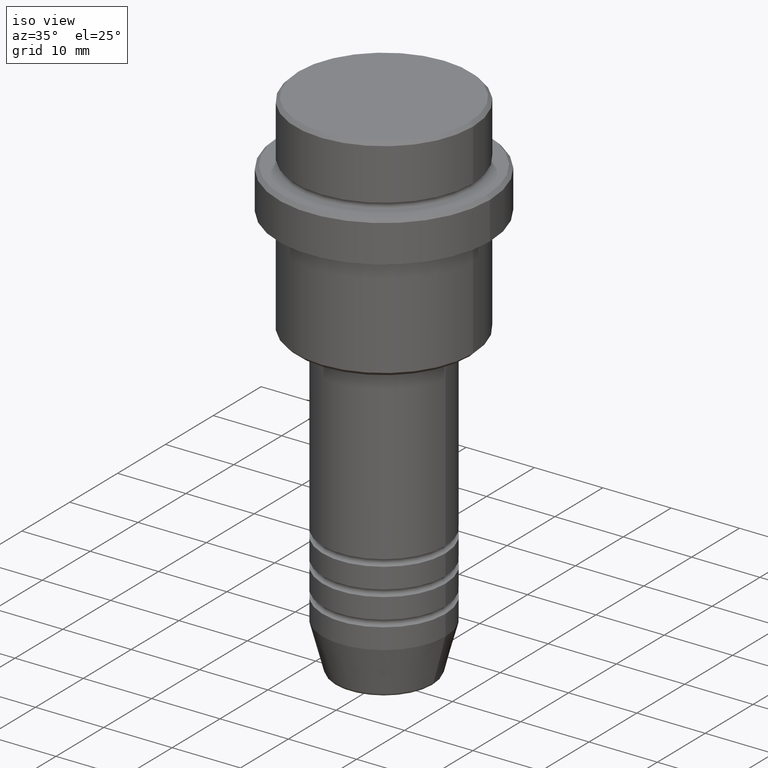
[diagram: clean part render]
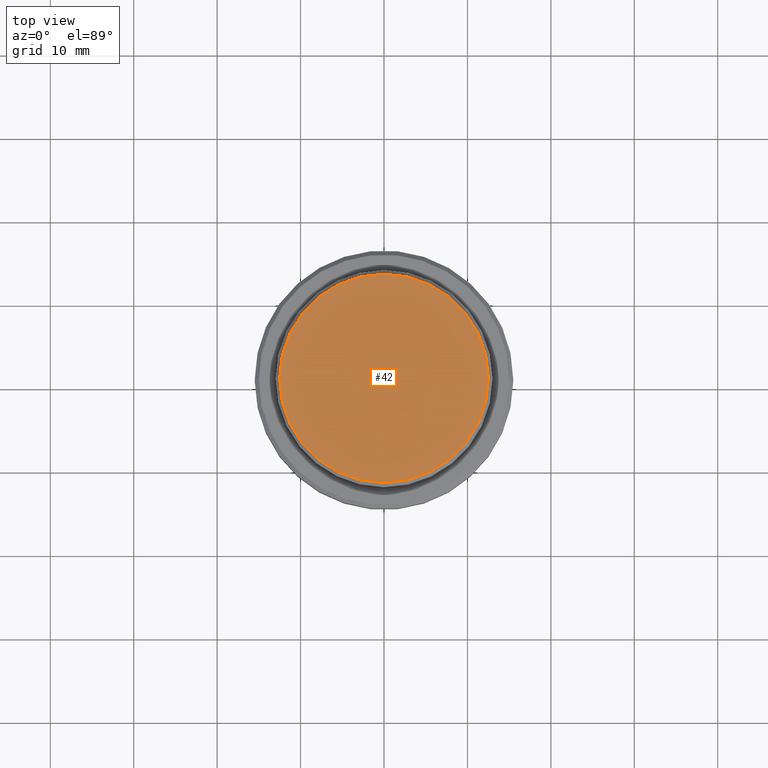
[diagram: tour spotlight — one face highlighted and labeled with its STEP entity id]
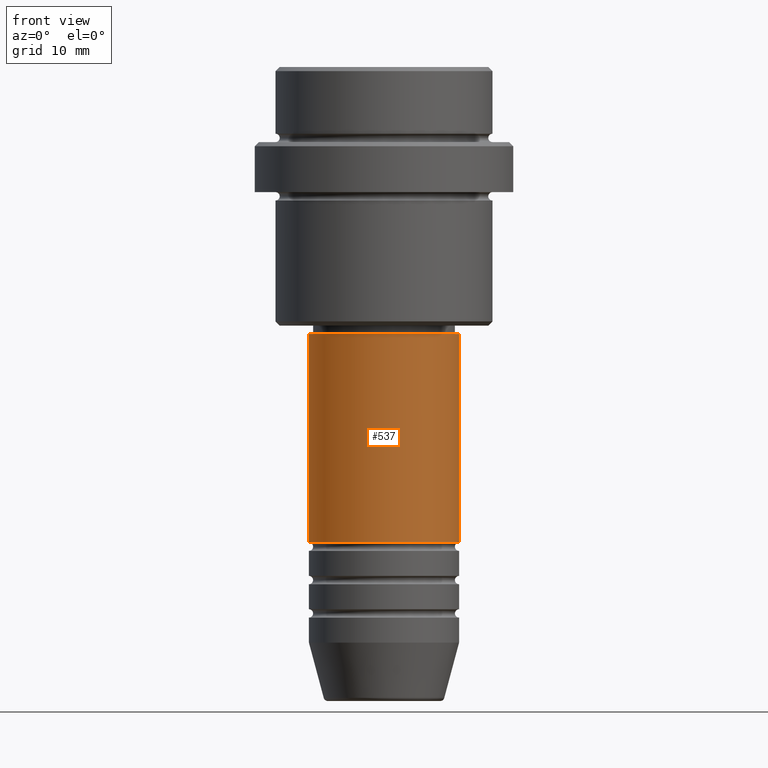
[diagram: tour spotlight — one face highlighted and labeled with its STEP entity id]
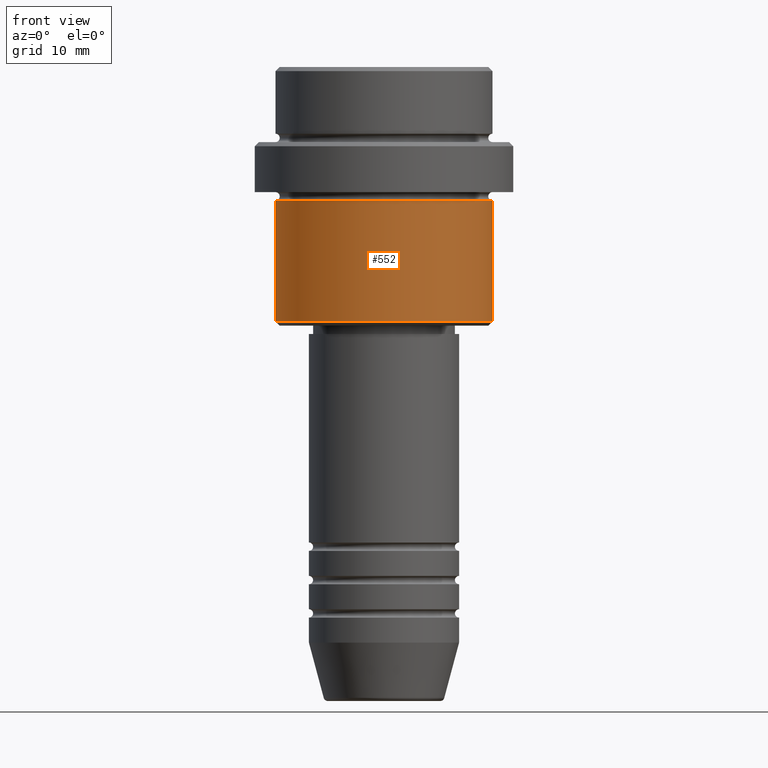
[diagram: tour spotlight — one face highlighted and labeled with its STEP entity id]
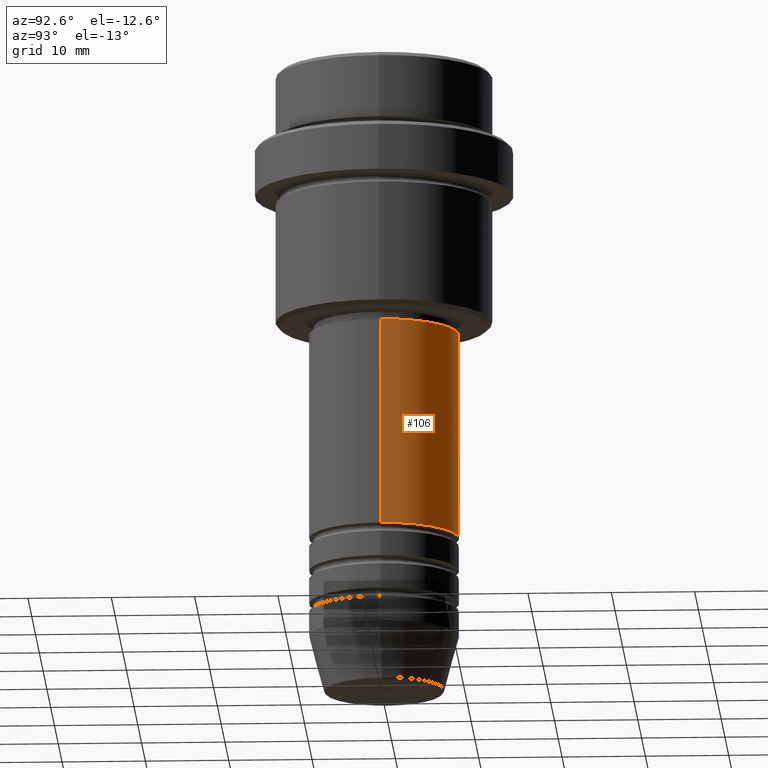
[diagram: tour spotlight — one face highlighted and labeled with its STEP entity id]
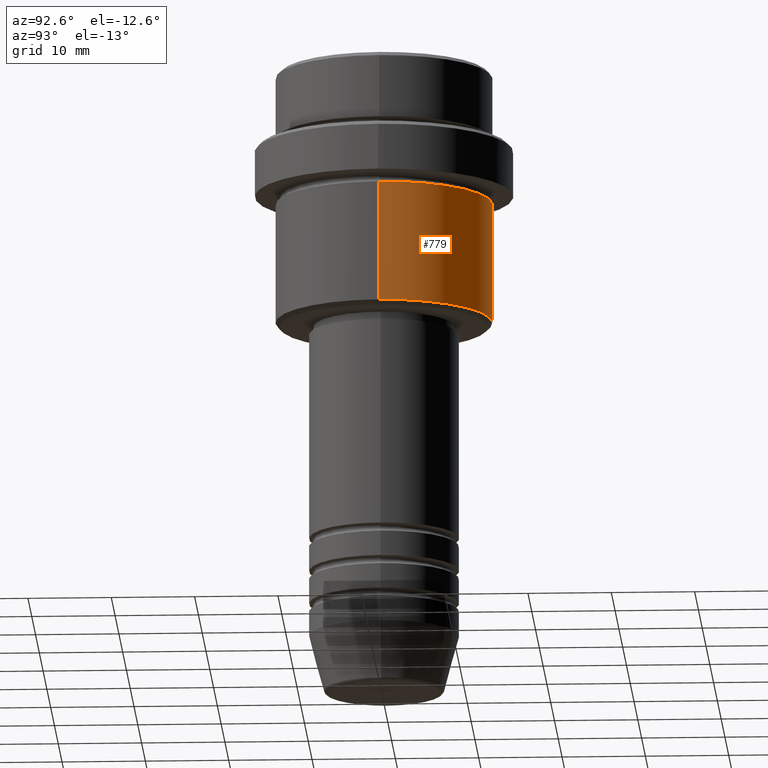
[diagram: tour spotlight — one face highlighted and labeled with its STEP entity id]
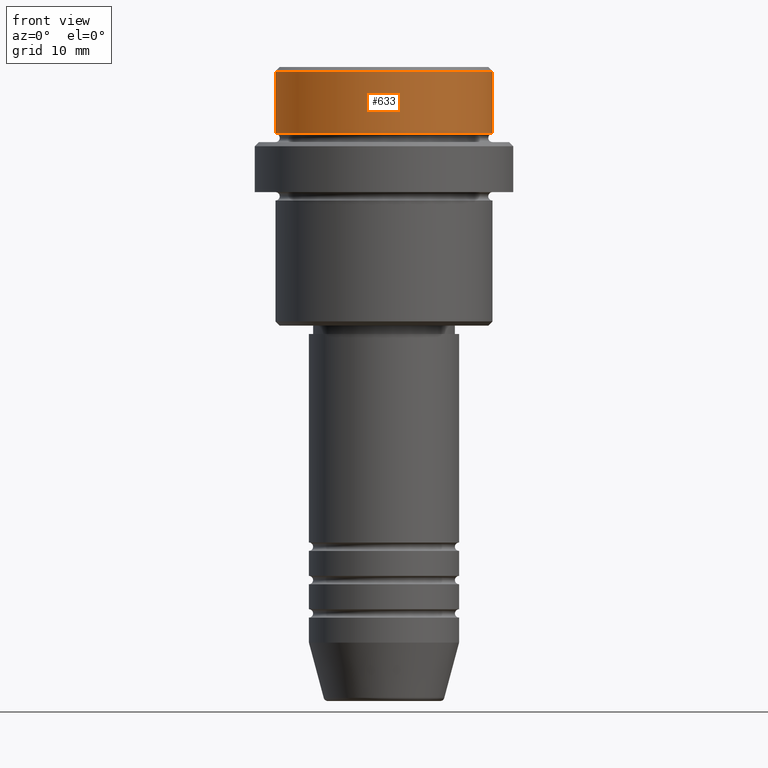
[diagram: tour spotlight — one face highlighted and labeled with its STEP entity id]
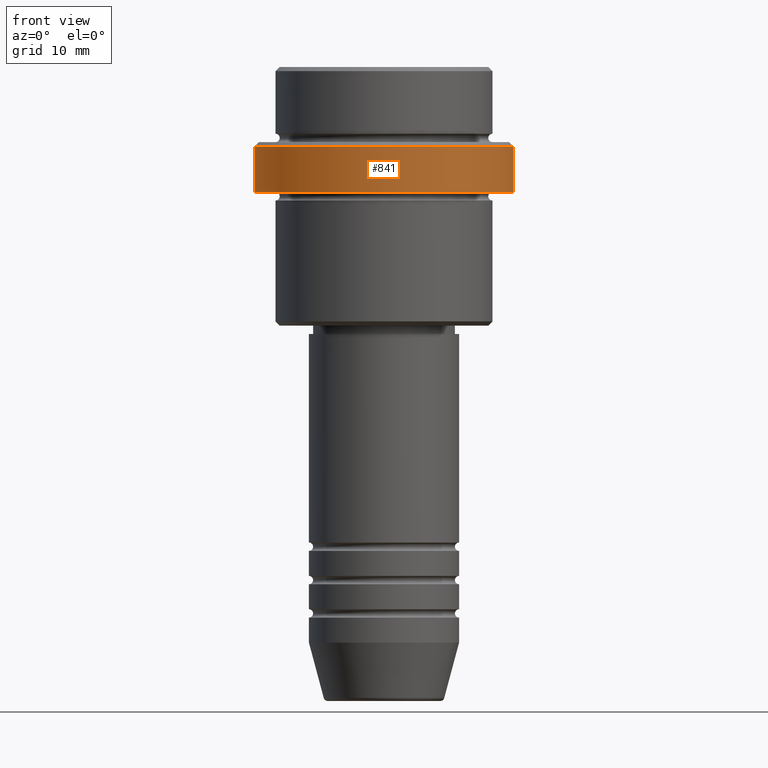
[diagram: tour spotlight — one face highlighted and labeled with its STEP entity id]
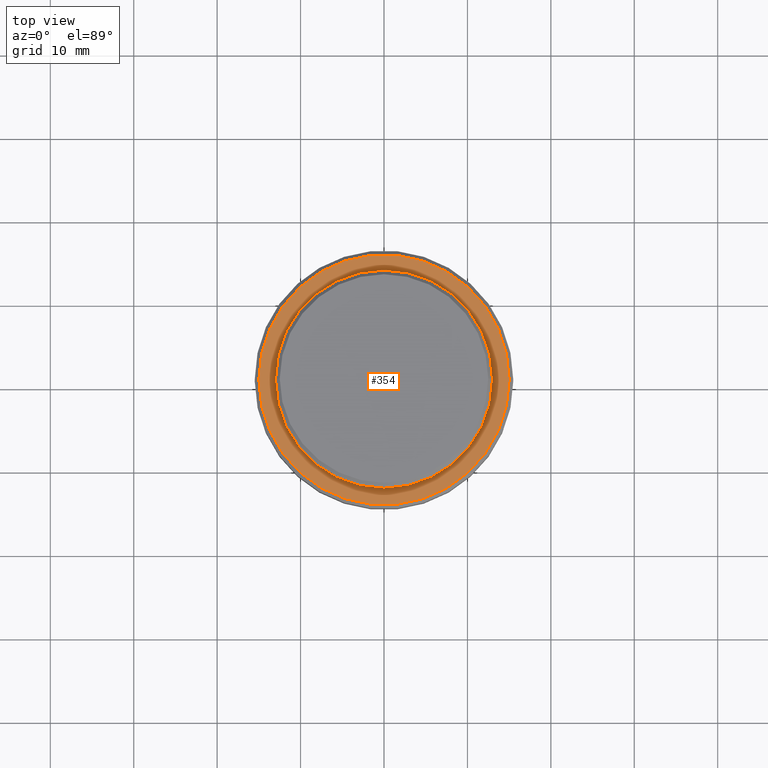
[diagram: tour spotlight — one face highlighted and labeled with its STEP entity id]
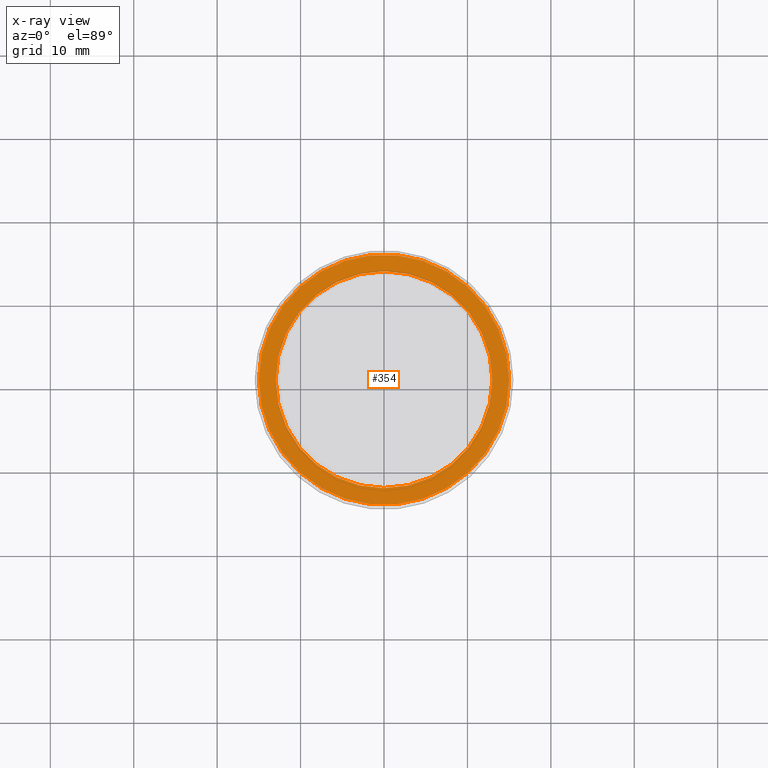
[diagram: x-ray of the same camera — body ghosted, this tour face saturated]
A machine part: a face-by-face anatomy tour. The part has 52 B-rep faces; the first image is the clean iso view, then the 8 largest visible faces are spotlighted one at a time (largest first), each with its STEP entity span.

Face 1 — top view, entity #42. In plain terms, the highlighted planar face has unit normal (0, -0, 1).
Definition (entity closure, byte-faithful):
#42 = ADVANCED_FACE ( 'NONE', ( #632 ), #1303, .T. ) ;
#82 = CARTESIAN_POINT ( 'NONE',  ( -12.50000000000001243, 0.000000000000000000, 0.000000000000000000 ) ) ;
#84 = AXIS2_PLACEMENT_3D ( 'NONE', #495, #269, #937 ) ;
#147 = CIRCLE ( 'NONE', #712, 12.50000000000001243 ) ;
#162 = DIRECTION ( 'NONE',  ( 1.000000000000000000, 0.000000000000000000, 0.000000000000000000 ) ) ;
#189 = AXIS2_PLACEMENT_3D ( 'NONE', #964, #1088, #162 ) ;
#269 = DIRECTION ( 'NONE',  ( -0.000000000000000000, -0.000000000000000000, 1.000000000000000000 ) ) ;
#287 = CARTESIAN_POINT ( 'NONE',  ( 0.000000000000000000, 0.000000000000000000, 0.000000000000000000 ) ) ;
#425 = VERTEX_POINT ( 'NONE', #940 ) ;
#448 = ORIENTED_EDGE ( 'NONE', *, *, #913, .T. ) ;
#495 = CARTESIAN_POINT ( 'NONE',  ( 0.000000000000000000, 0.000000000000000000, 0.000000000000000000 ) ) ;
#514 = ORIENTED_EDGE ( 'NONE', *, *, #1376, .T. ) ;
#632 = FACE_OUTER_BOUND ( 'NONE', #1201, .T. ) ;
#695 = CIRCLE ( 'NONE', #84, 12.50000000000001243 ) ;
#712 = AXIS2_PLACEMENT_3D ( 'NONE', #287, #946, #1174 ) ;
#913 = EDGE_CURVE ( 'NONE', #425, #1382, #147, .T. ) ;
#937 = DIRECTION ( 'NONE',  ( 1.000000000000000000, 0.000000000000000000, 0.000000000000000000 ) ) ;
#940 = CARTESIAN_POINT ( 'NONE',  ( 12.50000000000001243, 1.561424668912876097E-15, 0.000000000000000000 ) ) ;
#946 = DIRECTION ( 'NONE',  ( -0.000000000000000000, -0.000000000000000000, 1.000000000000000000 ) ) ;
#964 = CARTESIAN_POINT ( 'NONE',  ( 0.000000000000000000, 0.000000000000000000, 0.000000000000000000 ) ) ;
#1088 = DIRECTION ( 'NONE',  ( 0.000000000000000000, -0.000000000000000000, 1.000000000000000000 ) ) ;
#1174 = DIRECTION ( 'NONE',  ( 1.000000000000000000, 0.000000000000000000, 0.000000000000000000 ) ) ;
#1201 = EDGE_LOOP ( 'NONE', ( #514, #448 ) ) ;
#1303 = PLANE ( 'NONE',  #189 ) ;
#1376 = EDGE_CURVE ( 'NONE', #1382, #425, #695, .T. ) ;
#1382 = VERTEX_POINT ( 'NONE', #82 ) ;

Face 2 — front view, entity #537. In plain terms, the highlighted cylindrical surface (partial cylindrical patch) has radius 9 mm, axis along (-0, -0, 1).
Definition (entity closure, byte-faithful):
#66 = VERTEX_POINT ( 'NONE', #748 ) ;
#93 = ORIENTED_EDGE ( 'NONE', *, *, #1107, .F. ) ;
#102 = DIRECTION ( 'NONE',  ( -0.000000000000000000, -0.000000000000000000, 1.000000000000000000 ) ) ;
#142 = CARTESIAN_POINT ( 'NONE',  ( 0.000000000000000000, 0.000000000000000000, 0.000000000000000000 ) ) ;
#235 = AXIS2_PLACEMENT_3D ( 'NONE', #490, #539, #1206 ) ;
#241 = AXIS2_PLACEMENT_3D ( 'NONE', #142, #337, #1221 ) ;
#325 = CARTESIAN_POINT ( 'NONE',  ( 0.000000000000000000, 0.000000000000000000, -56.99999999999987921 ) ) ;
#333 = VERTEX_POINT ( 'NONE', #1381 ) ;
#337 = DIRECTION ( 'NONE',  ( -0.000000000000000000, -0.000000000000000000, 1.000000000000000000 ) ) ;
#344 = VERTEX_POINT ( 'NONE', #524 ) ;
#363 = DIRECTION ( 'NONE',  ( -0.000000000000000000, -0.000000000000000000, 1.000000000000000000 ) ) ;
#432 = ORIENTED_EDGE ( 'NONE', *, *, #1024, .F. ) ;
#490 = CARTESIAN_POINT ( 'NONE',  ( 0.000000000000000000, 0.000000000000000000, -32.00000000000000000 ) ) ;
#524 = CARTESIAN_POINT ( 'NONE',  ( -9.000000000000000000, 1.102182119232617714E-15, -56.99999999999987921 ) ) ;
#537 = ADVANCED_FACE ( 'NONE', ( #888 ), #1333, .T. ) ;
#539 = DIRECTION ( 'NONE',  ( -0.000000000000000000, -0.000000000000000000, 1.000000000000000000 ) ) ;
#583 = CIRCLE ( 'NONE', #1204, 9.000000000000000000 ) ;
#607 = EDGE_CURVE ( 'NONE', #344, #1370, #583, .T. ) ;
#666 = DIRECTION ( 'NONE',  ( 1.000000000000000000, 0.000000000000000000, 0.000000000000000000 ) ) ;
#741 = EDGE_CURVE ( 'NONE', #1370, #66, #997, .T. ) ;
#745 = LINE ( 'NONE', #1187, #1055 ) ;
#748 = CARTESIAN_POINT ( 'NONE',  ( 9.000000000000001776, 0.000000000000000000, -32.00000000000000000 ) ) ;
#888 = FACE_OUTER_BOUND ( 'NONE', #1396, .T. ) ;
#997 = LINE ( 'NONE', #1261, #1229 ) ;
#1018 = ORIENTED_EDGE ( 'NONE', *, *, #607, .T. ) ;
#1024 = EDGE_CURVE ( 'NONE', #333, #66, #1076, .T. ) ;
#1055 = VECTOR ( 'NONE', #102, 1000.000000000000000 ) ;
#1076 = CIRCLE ( 'NONE', #235, 9.000000000000001776 ) ;
#1107 = EDGE_CURVE ( 'NONE', #344, #333, #745, .T. ) ;
#1187 = CARTESIAN_POINT ( 'NONE',  ( -9.000000000000001776, 1.102182119232617911E-15, 0.000000000000000000 ) ) ;
#1193 = DIRECTION ( 'NONE',  ( -0.000000000000000000, -0.000000000000000000, 1.000000000000000000 ) ) ;
#1204 = AXIS2_PLACEMENT_3D ( 'NONE', #325, #1193, #666 ) ;
#1206 = DIRECTION ( 'NONE',  ( 1.000000000000000000, 0.000000000000000000, 0.000000000000000000 ) ) ;
#1221 = DIRECTION ( 'NONE',  ( 1.000000000000000000, 0.000000000000000000, 0.000000000000000000 ) ) ;
#1229 = VECTOR ( 'NONE', #363, 1000.000000000000000 ) ;
#1233 = ORIENTED_EDGE ( 'NONE', *, *, #741, .T. ) ;
#1261 = CARTESIAN_POINT ( 'NONE',  ( 9.000000000000001776, 0.000000000000000000, 0.000000000000000000 ) ) ;
#1272 = CARTESIAN_POINT ( 'NONE',  ( 9.000000000000000000, 0.000000000000000000, -56.99999999999987921 ) ) ;
#1333 = CYLINDRICAL_SURFACE ( 'NONE', #241, 9.000000000000001776 ) ;
#1370 = VERTEX_POINT ( 'NONE', #1272 ) ;
#1381 = CARTESIAN_POINT ( 'NONE',  ( -9.000000000000001776, 1.102182119232617911E-15, -32.00000000000000000 ) ) ;
#1396 = EDGE_LOOP ( 'NONE', ( #93, #1018, #1233, #432 ) ) ;

Face 3 — front view, entity #552. In plain terms, the highlighted cylindrical surface (partial cylindrical patch) has radius 13 mm, axis along (-0, -0, 1).
Definition (entity closure, byte-faithful):
#29 = CYLINDRICAL_SURFACE ( 'NONE', #1102, 13.00000000000000000 ) ;
#122 = CARTESIAN_POINT ( 'NONE',  ( -13.00000000000000000, 1.592040838891559095E-15, 0.000000000000000000 ) ) ;
#131 = CARTESIAN_POINT ( 'NONE',  ( 0.000000000000000000, 0.000000000000000000, -16.00000000000000000 ) ) ;
#167 = ORIENTED_EDGE ( 'NONE', *, *, #653, .T. ) ;
#184 = CARTESIAN_POINT ( 'NONE',  ( -13.00000000000000000, 1.592040838891559095E-15, -30.50000000000001421 ) ) ;
#234 = DIRECTION ( 'NONE',  ( -1.000000000000000000, 0.000000000000000000, 0.000000000000000000 ) ) ;
#253 = CARTESIAN_POINT ( 'NONE',  ( 13.00000000000000000, 0.000000000000000000, -30.50000000000001421 ) ) ;
#256 = ORIENTED_EDGE ( 'NONE', *, *, #1137, .F. ) ;
#364 = VERTEX_POINT ( 'NONE', #621 ) ;
#482 = DIRECTION ( 'NONE',  ( 1.000000000000000000, 0.000000000000000000, 0.000000000000000000 ) ) ;
#492 = EDGE_CURVE ( 'NONE', #789, #1093, #938, .T. ) ;
#527 = CIRCLE ( 'NONE', #580, 13.00000000000000000 ) ;
#552 = ADVANCED_FACE ( 'NONE', ( #1125 ), #29, .T. ) ;
#553 = DIRECTION ( 'NONE',  ( -0.000000000000000000, -0.000000000000000000, 1.000000000000000000 ) ) ;
#554 = VECTOR ( 'NONE', #553, 1000.000000000000000 ) ;
#580 = AXIS2_PLACEMENT_3D ( 'NONE', #131, #701, #482 ) ;
#621 = CARTESIAN_POINT ( 'NONE',  ( -13.00000000000000000, 1.592040838891559095E-15, -16.00000000000000000 ) ) ;
#653 = EDGE_CURVE ( 'NONE', #950, #789, #861, .T. ) ;
#684 = CARTESIAN_POINT ( 'NONE',  ( 0.000000000000000000, 0.000000000000000000, 0.000000000000000000 ) ) ;
#701 = DIRECTION ( 'NONE',  ( -0.000000000000000000, -0.000000000000000000, 1.000000000000000000 ) ) ;
#756 = CARTESIAN_POINT ( 'NONE',  ( 0.000000000000000000, 0.000000000000000000, -30.50000000000001421 ) ) ;
#773 = EDGE_LOOP ( 'NONE', ( #256, #167, #1185, #794 ) ) ;
#789 = VERTEX_POINT ( 'NONE', #253 ) ;
#794 = ORIENTED_EDGE ( 'NONE', *, *, #851, .F. ) ;
#802 = DIRECTION ( 'NONE',  ( 1.000000000000000000, 0.000000000000000000, 0.000000000000000000 ) ) ;
#851 = EDGE_CURVE ( 'NONE', #364, #1093, #527, .T. ) ;
#861 = CIRCLE ( 'NONE', #1144, 13.00000000000000000 ) ;
#915 = DIRECTION ( 'NONE',  ( -0.000000000000000000, -0.000000000000000000, 1.000000000000000000 ) ) ;
#938 = LINE ( 'NONE', #1267, #1300 ) ;
#950 = VERTEX_POINT ( 'NONE', #184 ) ;
#1043 = DIRECTION ( 'NONE',  ( -0.000000000000000000, -0.000000000000000000, 1.000000000000000000 ) ) ;
#1093 = VERTEX_POINT ( 'NONE', #1322 ) ;
#1102 = AXIS2_PLACEMENT_3D ( 'NONE', #684, #915, #802 ) ;
#1125 = FACE_OUTER_BOUND ( 'NONE', #773, .T. ) ;
#1137 = EDGE_CURVE ( 'NONE', #950, #364, #1304, .T. ) ;
#1144 = AXIS2_PLACEMENT_3D ( 'NONE', #756, #1207, #234 ) ;
#1185 = ORIENTED_EDGE ( 'NONE', *, *, #492, .T. ) ;
#1207 = DIRECTION ( 'NONE',  ( -0.000000000000000000, -0.000000000000000000, 1.000000000000000000 ) ) ;
#1267 = CARTESIAN_POINT ( 'NONE',  ( 13.00000000000000000, 0.000000000000000000, 0.000000000000000000 ) ) ;
#1300 = VECTOR ( 'NONE', #1043, 1000.000000000000000 ) ;
#1304 = LINE ( 'NONE', #122, #554 ) ;
#1322 = CARTESIAN_POINT ( 'NONE',  ( 13.00000000000000000, 0.000000000000000000, -16.00000000000000000 ) ) ;

Face 4 — auxiliary view, entity #106. In plain terms, the highlighted cylindrical surface (partial cylindrical patch) has radius 9 mm, axis along (-0, -0, 1).
Definition (entity closure, byte-faithful):
#58 = CIRCLE ( 'NONE', #108, 9.000000000000000000 ) ;
#66 = VERTEX_POINT ( 'NONE', #748 ) ;
#68 = DIRECTION ( 'NONE',  ( -0.000000000000000000, -0.000000000000000000, 1.000000000000000000 ) ) ;
#102 = DIRECTION ( 'NONE',  ( -0.000000000000000000, -0.000000000000000000, 1.000000000000000000 ) ) ;
#106 = ADVANCED_FACE ( 'NONE', ( #895 ), #561, .T. ) ;
#108 = AXIS2_PLACEMENT_3D ( 'NONE', #579, #1238, #342 ) ;
#192 = ORIENTED_EDGE ( 'NONE', *, *, #741, .F. ) ;
#333 = VERTEX_POINT ( 'NONE', #1381 ) ;
#342 = DIRECTION ( 'NONE',  ( 1.000000000000000000, 0.000000000000000000, 0.000000000000000000 ) ) ;
#344 = VERTEX_POINT ( 'NONE', #524 ) ;
#353 = ORIENTED_EDGE ( 'NONE', *, *, #1002, .F. ) ;
#363 = DIRECTION ( 'NONE',  ( -0.000000000000000000, -0.000000000000000000, 1.000000000000000000 ) ) ;
#524 = CARTESIAN_POINT ( 'NONE',  ( -9.000000000000000000, 1.102182119232617714E-15, -56.99999999999987921 ) ) ;
#541 = ORIENTED_EDGE ( 'NONE', *, *, #873, .T. ) ;
#561 = CYLINDRICAL_SURFACE ( 'NONE', #568, 9.000000000000001776 ) ;
#568 = AXIS2_PLACEMENT_3D ( 'NONE', #1213, #1205, #753 ) ;
#576 = EDGE_LOOP ( 'NONE', ( #541, #1359, #353, #192 ) ) ;
#579 = CARTESIAN_POINT ( 'NONE',  ( 0.000000000000000000, 0.000000000000000000, -56.99999999999987921 ) ) ;
#650 = CIRCLE ( 'NONE', #856, 9.000000000000001776 ) ;
#741 = EDGE_CURVE ( 'NONE', #1370, #66, #997, .T. ) ;
#745 = LINE ( 'NONE', #1187, #1055 ) ;
#748 = CARTESIAN_POINT ( 'NONE',  ( 9.000000000000001776, 0.000000000000000000, -32.00000000000000000 ) ) ;
#753 = DIRECTION ( 'NONE',  ( 1.000000000000000000, 0.000000000000000000, 0.000000000000000000 ) ) ;
#856 = AXIS2_PLACEMENT_3D ( 'NONE', #1160, #68, #1180 ) ;
#873 = EDGE_CURVE ( 'NONE', #1370, #344, #58, .T. ) ;
#895 = FACE_OUTER_BOUND ( 'NONE', #576, .T. ) ;
#997 = LINE ( 'NONE', #1261, #1229 ) ;
#1002 = EDGE_CURVE ( 'NONE', #66, #333, #650, .T. ) ;
#1055 = VECTOR ( 'NONE', #102, 1000.000000000000000 ) ;
#1107 = EDGE_CURVE ( 'NONE', #344, #333, #745, .T. ) ;
#1160 = CARTESIAN_POINT ( 'NONE',  ( 0.000000000000000000, 0.000000000000000000, -32.00000000000000000 ) ) ;
#1180 = DIRECTION ( 'NONE',  ( 1.000000000000000000, 0.000000000000000000, 0.000000000000000000 ) ) ;
#1187 = CARTESIAN_POINT ( 'NONE',  ( -9.000000000000001776, 1.102182119232617911E-15, 0.000000000000000000 ) ) ;
#1205 = DIRECTION ( 'NONE',  ( -0.000000000000000000, -0.000000000000000000, 1.000000000000000000 ) ) ;
#1213 = CARTESIAN_POINT ( 'NONE',  ( 0.000000000000000000, 0.000000000000000000, 0.000000000000000000 ) ) ;
#1229 = VECTOR ( 'NONE', #363, 1000.000000000000000 ) ;
#1238 = DIRECTION ( 'NONE',  ( -0.000000000000000000, -0.000000000000000000, 1.000000000000000000 ) ) ;
#1261 = CARTESIAN_POINT ( 'NONE',  ( 9.000000000000001776, 0.000000000000000000, 0.000000000000000000 ) ) ;
#1272 = CARTESIAN_POINT ( 'NONE',  ( 9.000000000000000000, 0.000000000000000000, -56.99999999999987921 ) ) ;
#1359 = ORIENTED_EDGE ( 'NONE', *, *, #1107, .T. ) ;
#1370 = VERTEX_POINT ( 'NONE', #1272 ) ;
#1381 = CARTESIAN_POINT ( 'NONE',  ( -9.000000000000001776, 1.102182119232617911E-15, -32.00000000000000000 ) ) ;

Face 5 — auxiliary view, entity #779. In plain terms, the highlighted cylindrical surface (partial cylindrical patch) has radius 13 mm, axis along (-0, -0, 1).
Definition (entity closure, byte-faithful):
#13 = CIRCLE ( 'NONE', #761, 13.00000000000000000 ) ;
#22 = CARTESIAN_POINT ( 'NONE',  ( 0.000000000000000000, 0.000000000000000000, 0.000000000000000000 ) ) ;
#117 = CARTESIAN_POINT ( 'NONE',  ( 0.000000000000000000, 0.000000000000000000, -30.50000000000001421 ) ) ;
#122 = CARTESIAN_POINT ( 'NONE',  ( -13.00000000000000000, 1.592040838891559095E-15, 0.000000000000000000 ) ) ;
#155 = DIRECTION ( 'NONE',  ( -0.000000000000000000, -0.000000000000000000, 1.000000000000000000 ) ) ;
#184 = CARTESIAN_POINT ( 'NONE',  ( -13.00000000000000000, 1.592040838891559095E-15, -30.50000000000001421 ) ) ;
#187 = ORIENTED_EDGE ( 'NONE', *, *, #1112, .T. ) ;
#237 = CIRCLE ( 'NONE', #1161, 13.00000000000000000 ) ;
#253 = CARTESIAN_POINT ( 'NONE',  ( 13.00000000000000000, 0.000000000000000000, -30.50000000000001421 ) ) ;
#358 = CYLINDRICAL_SURFACE ( 'NONE', #1224, 13.00000000000000000 ) ;
#364 = VERTEX_POINT ( 'NONE', #621 ) ;
#423 = DIRECTION ( 'NONE',  ( -0.000000000000000000, -0.000000000000000000, 1.000000000000000000 ) ) ;
#492 = EDGE_CURVE ( 'NONE', #789, #1093, #938, .T. ) ;
#553 = DIRECTION ( 'NONE',  ( -0.000000000000000000, -0.000000000000000000, 1.000000000000000000 ) ) ;
#554 = VECTOR ( 'NONE', #553, 1000.000000000000000 ) ;
#566 = ORIENTED_EDGE ( 'NONE', *, *, #492, .F. ) ;
#621 = CARTESIAN_POINT ( 'NONE',  ( -13.00000000000000000, 1.592040838891559095E-15, -16.00000000000000000 ) ) ;
#669 = DIRECTION ( 'NONE',  ( 1.000000000000000000, 0.000000000000000000, 0.000000000000000000 ) ) ;
#680 = ORIENTED_EDGE ( 'NONE', *, *, #1218, .F. ) ;
#761 = AXIS2_PLACEMENT_3D ( 'NONE', #117, #423, #771 ) ;
#771 = DIRECTION ( 'NONE',  ( -1.000000000000000000, 0.000000000000000000, 0.000000000000000000 ) ) ;
#779 = ADVANCED_FACE ( 'NONE', ( #1038 ), #358, .T. ) ;
#789 = VERTEX_POINT ( 'NONE', #253 ) ;
#907 = DIRECTION ( 'NONE',  ( 1.000000000000000000, 0.000000000000000000, 0.000000000000000000 ) ) ;
#938 = LINE ( 'NONE', #1267, #1300 ) ;
#950 = VERTEX_POINT ( 'NONE', #184 ) ;
#1015 = DIRECTION ( 'NONE',  ( -0.000000000000000000, -0.000000000000000000, 1.000000000000000000 ) ) ;
#1021 = CARTESIAN_POINT ( 'NONE',  ( 0.000000000000000000, 0.000000000000000000, -16.00000000000000000 ) ) ;
#1038 = FACE_OUTER_BOUND ( 'NONE', #1196, .T. ) ;
#1043 = DIRECTION ( 'NONE',  ( -0.000000000000000000, -0.000000000000000000, 1.000000000000000000 ) ) ;
#1093 = VERTEX_POINT ( 'NONE', #1322 ) ;
#1112 = EDGE_CURVE ( 'NONE', #789, #950, #13, .T. ) ;
#1137 = EDGE_CURVE ( 'NONE', #950, #364, #1304, .T. ) ;
#1161 = AXIS2_PLACEMENT_3D ( 'NONE', #1021, #1015, #669 ) ;
#1196 = EDGE_LOOP ( 'NONE', ( #187, #1208, #680, #566 ) ) ;
#1208 = ORIENTED_EDGE ( 'NONE', *, *, #1137, .T. ) ;
#1218 = EDGE_CURVE ( 'NONE', #1093, #364, #237, .T. ) ;
#1224 = AXIS2_PLACEMENT_3D ( 'NONE', #22, #155, #907 ) ;
#1267 = CARTESIAN_POINT ( 'NONE',  ( 13.00000000000000000, 0.000000000000000000, 0.000000000000000000 ) ) ;
#1300 = VECTOR ( 'NONE', #1043, 1000.000000000000000 ) ;
#1304 = LINE ( 'NONE', #122, #554 ) ;
#1322 = CARTESIAN_POINT ( 'NONE',  ( 13.00000000000000000, 0.000000000000000000, -16.00000000000000000 ) ) ;

Face 6 — front view, entity #633. In plain terms, the highlighted cylindrical surface (partial cylindrical patch) has radius 13 mm, axis along (-0, -0, 1).
Definition (entity closure, byte-faithful):
#23 = EDGE_CURVE ( 'NONE', #1346, #884, #1118, .T. ) ;
#45 = ORIENTED_EDGE ( 'NONE', *, *, #313, .T. ) ;
#48 = VECTOR ( 'NONE', #470, 1000.000000000000000 ) ;
#141 = CARTESIAN_POINT ( 'NONE',  ( 12.99999999999999822, 0.000000000000000000, -7.999999999999998224 ) ) ;
#186 = DIRECTION ( 'NONE',  ( 1.000000000000000000, 0.000000000000000000, 0.000000000000000000 ) ) ;
#209 = DIRECTION ( 'NONE',  ( 1.000000000000000000, 0.000000000000000000, 0.000000000000000000 ) ) ;
#252 = EDGE_CURVE ( 'NONE', #935, #884, #1158, .T. ) ;
#313 = EDGE_CURVE ( 'NONE', #1346, #1170, #1049, .T. ) ;
#411 = DIRECTION ( 'NONE',  ( -0.000000000000000000, -0.000000000000000000, 1.000000000000000000 ) ) ;
#470 = DIRECTION ( 'NONE',  ( -0.000000000000000000, -0.000000000000000000, 1.000000000000000000 ) ) ;
#472 = EDGE_LOOP ( 'NONE', ( #1217, #45, #1255, #870 ) ) ;
#493 = CARTESIAN_POINT ( 'NONE',  ( 0.000000000000000000, 0.000000000000000000, -0.5000000000000038858 ) ) ;
#633 = ADVANCED_FACE ( 'NONE', ( #1334 ), #772, .T. ) ;
#647 = LINE ( 'NONE', #986, #1279 ) ;
#765 = CARTESIAN_POINT ( 'NONE',  ( 0.000000000000000000, 0.000000000000000000, 0.000000000000000000 ) ) ;
#772 = CYLINDRICAL_SURFACE ( 'NONE', #1080, 12.99999999999999822 ) ;
#793 = CARTESIAN_POINT ( 'NONE',  ( -12.99999999999999822, 1.592040838891558898E-15, 0.000000000000000000 ) ) ;
#818 = DIRECTION ( 'NONE',  ( 1.000000000000000000, 0.000000000000000000, 0.000000000000000000 ) ) ;
#870 = ORIENTED_EDGE ( 'NONE', *, *, #252, .T. ) ;
#884 = VERTEX_POINT ( 'NONE', #1232 ) ;
#935 = VERTEX_POINT ( 'NONE', #1167 ) ;
#986 = CARTESIAN_POINT ( 'NONE',  ( 12.99999999999999822, 0.000000000000000000, 0.000000000000000000 ) ) ;
#1036 = EDGE_CURVE ( 'NONE', #1170, #935, #647, .T. ) ;
#1049 = CIRCLE ( 'NONE', #1403, 12.99999999999999822 ) ;
#1080 = AXIS2_PLACEMENT_3D ( 'NONE', #765, #1117, #209 ) ;
#1117 = DIRECTION ( 'NONE',  ( -0.000000000000000000, -0.000000000000000000, 1.000000000000000000 ) ) ;
#1118 = LINE ( 'NONE', #793, #48 ) ;
#1158 = CIRCLE ( 'NONE', #1343, 12.99999999999999822 ) ;
#1167 = CARTESIAN_POINT ( 'NONE',  ( 12.99999999999999822, 0.000000000000000000, -0.5000000000000038858 ) ) ;
#1170 = VERTEX_POINT ( 'NONE', #141 ) ;
#1217 = ORIENTED_EDGE ( 'NONE', *, *, #23, .F. ) ;
#1232 = CARTESIAN_POINT ( 'NONE',  ( -12.99999999999999822, 1.592040838891558898E-15, -0.5000000000000038858 ) ) ;
#1255 = ORIENTED_EDGE ( 'NONE', *, *, #1036, .T. ) ;
#1258 = CARTESIAN_POINT ( 'NONE',  ( -12.99999999999999822, 1.592040838891558898E-15, -7.999999999999998224 ) ) ;
#1262 = DIRECTION ( 'NONE',  ( 0.000000000000000000, 0.000000000000000000, -1.000000000000000000 ) ) ;
#1269 = CARTESIAN_POINT ( 'NONE',  ( 0.000000000000000000, 0.000000000000000000, -7.999999999999998224 ) ) ;
#1279 = VECTOR ( 'NONE', #1404, 1000.000000000000000 ) ;
#1334 = FACE_OUTER_BOUND ( 'NONE', #472, .T. ) ;
#1343 = AXIS2_PLACEMENT_3D ( 'NONE', #493, #1262, #818 ) ;
#1346 = VERTEX_POINT ( 'NONE', #1258 ) ;
#1403 = AXIS2_PLACEMENT_3D ( 'NONE', #1269, #411, #186 ) ;
#1404 = DIRECTION ( 'NONE',  ( -0.000000000000000000, -0.000000000000000000, 1.000000000000000000 ) ) ;

Face 7 — front view, entity #841. In plain terms, the highlighted cylindrical surface (partial cylindrical patch) has radius 15.5 mm, axis along (-0, -0, 1).
Definition (entity closure, byte-faithful):
#43 = DIRECTION ( 'NONE',  ( 1.000000000000000000, 0.000000000000000000, 0.000000000000000000 ) ) ;
#49 = CARTESIAN_POINT ( 'NONE',  ( 0.000000000000000000, 0.000000000000000000, -9.500000000000026645 ) ) ;
#87 = ORIENTED_EDGE ( 'NONE', *, *, #597, .F. ) ;
#100 = ORIENTED_EDGE ( 'NONE', *, *, #228, .T. ) ;
#109 = VERTEX_POINT ( 'NONE', #1121 ) ;
#143 = CYLINDRICAL_SURFACE ( 'NONE', #694, 15.50000000000000000 ) ;
#149 = CIRCLE ( 'NONE', #1100, 15.50000000000000000 ) ;
#150 = VERTEX_POINT ( 'NONE', #1321 ) ;
#228 = EDGE_CURVE ( 'NONE', #150, #949, #340, .T. ) ;
#311 = LINE ( 'NONE', #1011, #1390 ) ;
#340 = CIRCLE ( 'NONE', #644, 15.50000000000000000 ) ;
#415 = LINE ( 'NONE', #1105, #1099 ) ;
#437 = DIRECTION ( 'NONE',  ( -0.000000000000000000, -0.000000000000000000, 1.000000000000000000 ) ) ;
#471 = CARTESIAN_POINT ( 'NONE',  ( 0.000000000000000000, 0.000000000000000000, -15.00000000000000000 ) ) ;
#578 = DIRECTION ( 'NONE',  ( 0.000000000000000000, 0.000000000000000000, -1.000000000000000000 ) ) ;
#597 = EDGE_CURVE ( 'NONE', #150, #769, #311, .T. ) ;
#644 = AXIS2_PLACEMENT_3D ( 'NONE', #471, #708, #795 ) ;
#689 = ORIENTED_EDGE ( 'NONE', *, *, #1056, .T. ) ;
#694 = AXIS2_PLACEMENT_3D ( 'NONE', #1023, #1136, #899 ) ;
#708 = DIRECTION ( 'NONE',  ( -0.000000000000000000, -0.000000000000000000, 1.000000000000000000 ) ) ;
#730 = ORIENTED_EDGE ( 'NONE', *, *, #1209, .T. ) ;
#750 = DIRECTION ( 'NONE',  ( -0.000000000000000000, -0.000000000000000000, 1.000000000000000000 ) ) ;
#769 = VERTEX_POINT ( 'NONE', #1016 ) ;
#795 = DIRECTION ( 'NONE',  ( 1.000000000000000000, 0.000000000000000000, 0.000000000000000000 ) ) ;
#841 = ADVANCED_FACE ( 'NONE', ( #1031 ), #143, .T. ) ;
#899 = DIRECTION ( 'NONE',  ( 1.000000000000000000, 0.000000000000000000, 0.000000000000000000 ) ) ;
#949 = VERTEX_POINT ( 'NONE', #965 ) ;
#965 = CARTESIAN_POINT ( 'NONE',  ( 15.50000000000000000, 0.000000000000000000, -15.00000000000000000 ) ) ;
#1011 = CARTESIAN_POINT ( 'NONE',  ( -15.50000000000000000, 1.898202538678397557E-15, 0.000000000000000000 ) ) ;
#1016 = CARTESIAN_POINT ( 'NONE',  ( -15.50000000000000000, 1.898202538678397557E-15, -9.500000000000026645 ) ) ;
#1023 = CARTESIAN_POINT ( 'NONE',  ( 0.000000000000000000, 0.000000000000000000, 0.000000000000000000 ) ) ;
#1031 = FACE_OUTER_BOUND ( 'NONE', #1119, .T. ) ;
#1056 = EDGE_CURVE ( 'NONE', #949, #109, #415, .T. ) ;
#1099 = VECTOR ( 'NONE', #437, 1000.000000000000000 ) ;
#1100 = AXIS2_PLACEMENT_3D ( 'NONE', #49, #578, #43 ) ;
#1105 = CARTESIAN_POINT ( 'NONE',  ( 15.50000000000000000, 0.000000000000000000, 0.000000000000000000 ) ) ;
#1119 = EDGE_LOOP ( 'NONE', ( #87, #100, #689, #730 ) ) ;
#1121 = CARTESIAN_POINT ( 'NONE',  ( 15.50000000000000000, 0.000000000000000000, -9.500000000000026645 ) ) ;
#1136 = DIRECTION ( 'NONE',  ( -0.000000000000000000, -0.000000000000000000, 1.000000000000000000 ) ) ;
#1209 = EDGE_CURVE ( 'NONE', #109, #769, #149, .T. ) ;
#1321 = CARTESIAN_POINT ( 'NONE',  ( -15.50000000000000000, 1.898202538678397557E-15, -15.00000000000000000 ) ) ;
#1390 = VECTOR ( 'NONE', #750, 1000.000000000000000 ) ;

Face 8 — top view, entity #354. An x-ray twin of the same camera follows (body ghosted, this face saturated) — the face is partly hidden behind the body. In plain terms, the highlighted planar face has unit normal (0, -0, 1).
Definition (entity closure, byte-faithful):
#14 = EDGE_LOOP ( 'NONE', ( #1263, #766 ) ) ;
#46 = AXIS2_PLACEMENT_3D ( 'NONE', #1156, #1068, #77 ) ;
#77 = DIRECTION ( 'NONE',  ( 1.000000000000000000, 0.000000000000000000, 0.000000000000000000 ) ) ;
#90 = DIRECTION ( 'NONE',  ( 1.000000000000000000, 0.000000000000000000, 0.000000000000000000 ) ) ;
#124 = DIRECTION ( 'NONE',  ( 0.000000000000000000, 0.000000000000000000, -1.000000000000000000 ) ) ;
#146 = CARTESIAN_POINT ( 'NONE',  ( -12.99999999999999467, 1.592040838891558504E-15, -9.000000000000000000 ) ) ;
#153 = CARTESIAN_POINT ( 'NONE',  ( 12.99999999999999467, 0.000000000000000000, -9.000000000000000000 ) ) ;
#168 = DIRECTION ( 'NONE',  ( -0.000000000000000000, -0.000000000000000000, 1.000000000000000000 ) ) ;
#181 = CARTESIAN_POINT ( 'NONE',  ( 0.000000000000000000, 12.49999999999999289, -9.000000000000000000 ) ) ;
#271 = CARTESIAN_POINT ( 'NONE',  ( 14.99999999999998579, 1.867586368699712587E-15, -9.000000000000000000 ) ) ;
#290 = VERTEX_POINT ( 'NONE', #146 ) ;
#334 = AXIS2_PLACEMENT_3D ( 'NONE', #181, #833, #957 ) ;
#354 = ADVANCED_FACE ( 'NONE', ( #822, #504 ), #1164, .T. ) ;
#393 = AXIS2_PLACEMENT_3D ( 'NONE', #1414, #124, #558 ) ;
#395 = DIRECTION ( 'NONE',  ( -0.000000000000000000, -0.000000000000000000, 1.000000000000000000 ) ) ;
#426 = EDGE_CURVE ( 'NONE', #1225, #290, #1172, .T. ) ;
#504 = FACE_BOUND ( 'NONE', #1247, .T. ) ;
#508 = DIRECTION ( 'NONE',  ( 1.000000000000000000, 0.000000000000000000, 0.000000000000000000 ) ) ;
#558 = DIRECTION ( 'NONE',  ( 1.000000000000000000, 0.000000000000000000, 0.000000000000000000 ) ) ;
#571 = EDGE_CURVE ( 'NONE', #290, #1225, #1350, .T. ) ;
#734 = CARTESIAN_POINT ( 'NONE',  ( 0.000000000000000000, 0.000000000000000000, -9.000000000000000000 ) ) ;
#766 = ORIENTED_EDGE ( 'NONE', *, *, #990, .T. ) ;
#783 = AXIS2_PLACEMENT_3D ( 'NONE', #1066, #168, #508 ) ;
#815 = VERTEX_POINT ( 'NONE', #271 ) ;
#822 = FACE_OUTER_BOUND ( 'NONE', #14, .T. ) ;
#833 = DIRECTION ( 'NONE',  ( 0.000000000000000000, -0.000000000000000000, 1.000000000000000000 ) ) ;
#842 = CARTESIAN_POINT ( 'NONE',  ( -14.99999999999998579, 0.000000000000000000, -9.000000000000000000 ) ) ;
#885 = ORIENTED_EDGE ( 'NONE', *, *, #571, .T. ) ;
#957 = DIRECTION ( 'NONE',  ( 1.000000000000000000, 0.000000000000000000, 0.000000000000000000 ) ) ;
#990 = EDGE_CURVE ( 'NONE', #815, #998, #1104, .T. ) ;
#998 = VERTEX_POINT ( 'NONE', #842 ) ;
#1066 = CARTESIAN_POINT ( 'NONE',  ( 0.000000000000000000, 0.000000000000000000, -9.000000000000000000 ) ) ;
#1068 = DIRECTION ( 'NONE',  ( 0.000000000000000000, 0.000000000000000000, -1.000000000000000000 ) ) ;
#1104 = CIRCLE ( 'NONE', #1231, 14.99999999999998579 ) ;
#1128 = ORIENTED_EDGE ( 'NONE', *, *, #426, .T. ) ;
#1156 = CARTESIAN_POINT ( 'NONE',  ( 0.000000000000000000, 0.000000000000000000, -9.000000000000000000 ) ) ;
#1162 = CIRCLE ( 'NONE', #783, 14.99999999999998579 ) ;
#1164 = PLANE ( 'NONE',  #334 ) ;
#1172 = CIRCLE ( 'NONE', #46, 12.99999999999999467 ) ;
#1225 = VERTEX_POINT ( 'NONE', #153 ) ;
#1231 = AXIS2_PLACEMENT_3D ( 'NONE', #734, #395, #90 ) ;
#1247 = EDGE_LOOP ( 'NONE', ( #1128, #885 ) ) ;
#1263 = ORIENTED_EDGE ( 'NONE', *, *, #1393, .T. ) ;
#1350 = CIRCLE ( 'NONE', #393, 12.99999999999999467 ) ;
#1393 = EDGE_CURVE ( 'NONE', #998, #815, #1162, .T. ) ;
#1414 = CARTESIAN_POINT ( 'NONE',  ( 0.000000000000000000, 0.000000000000000000, -9.000000000000000000 ) ) ;